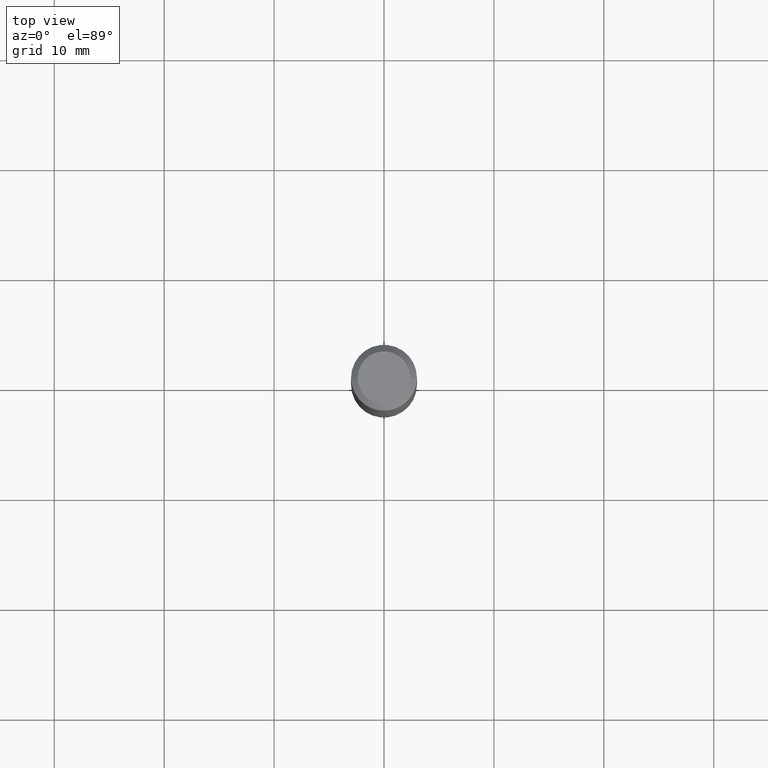
[diagram: clean part render]
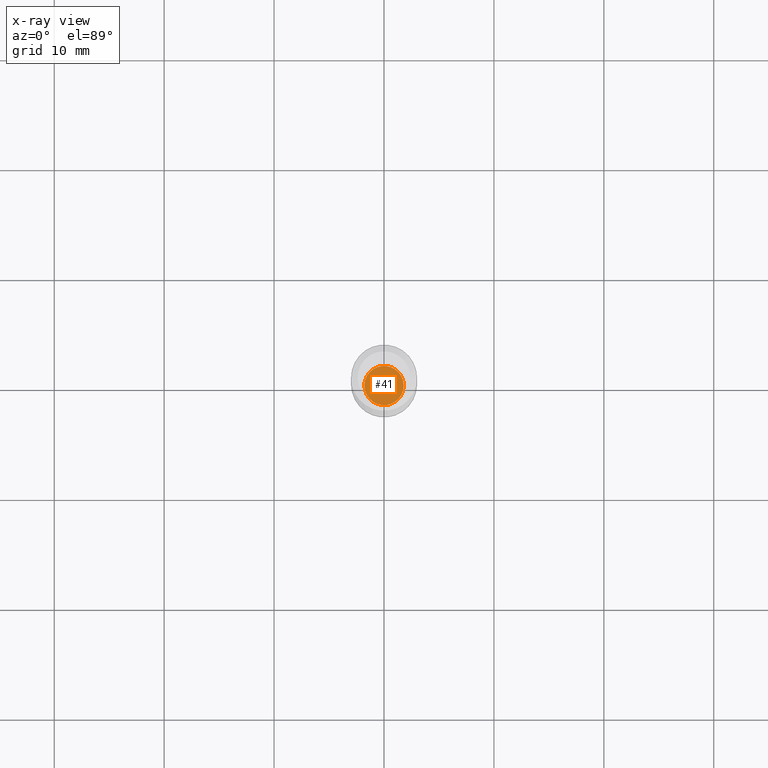
[diagram: x-ray — body ghosted, one internal face saturated and labeled with its STEP entity id]
A machine part, top view, then the same camera in x-ray: the body is ghosted and one INTERNAL B-rep face — a face not visible from any outside direction — is saturated and labeled: STEP entity #41.
In plain terms, the highlighted planar face has unit normal (-0, 0, 1).
Its self-contained STEP definition (entity closure, byte-faithful):
#4 = AXIS2_PLACEMENT_3D ( 'NONE', #435, #437, #239 ) ;
#20 = CARTESIAN_POINT ( 'NONE',  ( 4.004944263889397849E-29, -5.717998988623418403E-15, -1.637699999999999934 ) ) ;
#30 = CARTESIAN_POINT ( 'NONE',  ( 0.07034999999999999587, -6.209250412998647651E-15, -1.637699999999999934 ) ) ;
#41 = ADVANCED_FACE ( 'NONE', ( #298 ), #391, .F. ) ;
#73 = ORIENTED_EDGE ( 'NONE', *, *, #310, .F. ) ;
#80 = CIRCLE ( 'NONE', #217, 0.07034999999999999587 ) ;
#96 = CARTESIAN_POINT ( 'NONE',  ( -0.07034999999999999587, -5.215482946842077343E-15, -1.637699999999999934 ) ) ;
#116 = VERTEX_POINT ( 'NONE', #96 ) ;
#144 = EDGE_LOOP ( 'NONE', ( #73, #154 ) ) ;
#148 = CIRCLE ( 'NONE', #4, 0.07034999999999999587 ) ;
#154 = ORIENTED_EDGE ( 'NONE', *, *, #375, .F. ) ;
#190 = DIRECTION ( 'NONE',  ( 1.000000000000000000, -6.982962677686265922E-15, 4.876176775795935793E-29 ) ) ;
#194 = DIRECTION ( 'NONE',  ( -2.438088387897960049E-29, 3.491481338843145188E-15, 1.000000000000000000 ) ) ;
#217 = AXIS2_PLACEMENT_3D ( 'NONE', #405, #374, #282 ) ;
#239 = DIRECTION ( 'NONE',  ( 1.000000000000000000, -6.982962677686269866E-15, 0.000000000000000000 ) ) ;
#282 = DIRECTION ( 'NONE',  ( 1.000000000000000000, -6.982962677686269866E-15, 0.000000000000000000 ) ) ;
#293 = VERTEX_POINT ( 'NONE', #30 ) ;
#298 = FACE_OUTER_BOUND ( 'NONE', #144, .T. ) ;
#310 = EDGE_CURVE ( 'NONE', #293, #116, #148, .T. ) ;
#374 = DIRECTION ( 'NONE',  ( -2.445468806185136597E-29, 3.491481338843145583E-15, 1.000000000000000000 ) ) ;
#375 = EDGE_CURVE ( 'NONE', #116, #293, #80, .T. ) ;
#391 = PLANE ( 'NONE',  #484 ) ;
#405 = CARTESIAN_POINT ( 'NONE',  ( 4.004944263889397849E-29, -5.717998988623418403E-15, -1.637699999999999934 ) ) ;
#435 = CARTESIAN_POINT ( 'NONE',  ( 4.004944263889397849E-29, -5.717998988623418403E-15, -1.637699999999999934 ) ) ;
#437 = DIRECTION ( 'NONE',  ( -2.445468806185136597E-29, 3.491481338843145583E-15, 1.000000000000000000 ) ) ;
#484 = AXIS2_PLACEMENT_3D ( 'NONE', #20, #194, #190 ) ;